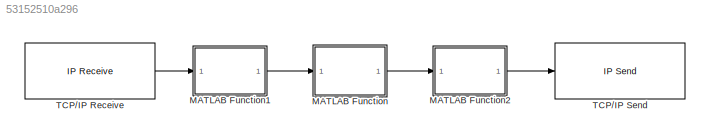
MODEL slx_53152510a296
KIND model
CONFIG AbsTol = auto
CONFIG EnableMultiTasking = off
CONFIG FixedStep = auto
CONFIG MaxStep = auto
CONFIG MinStep = auto
CONFIG RelTol = 1e-3
CONFIG SampleTimeConstraint = Unconstrained
CONFIG SolverName = VariableStepAuto
CONFIG StartTime = 0.0
CONFIG StopTime = 10.0
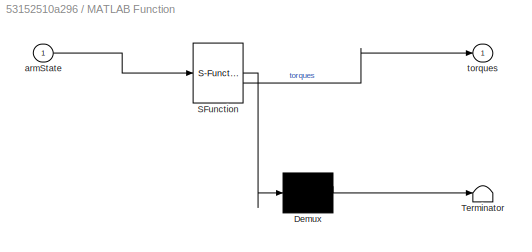
BLOCK [SubSystem] MATLAB Function
  ErrorFcn = Stateflow.Translate.translate
  LibrarySourceBlock = simulink/User-Defined\nFunctions/MATLAB Function
  PermitHierarchicalResolution = ExplicitOnly
  SFBlockType = MATLAB Function
  TreatAsAtomicUnit = on
BLOCK [Demux] MATLAB Function/ Demux 
  Outputs = 1
BLOCK [S-Function] MATLAB Function/ SFunction 
  EnableBusSupport = on
  FunctionName = sf_sfun
  PortCounts = [1 2]
  SFcnIsStateOwnerBlock = off
  SFunctionDeploymentMode = off
  Tag = Stateflow S-Function 2
BLOCK [Terminator] MATLAB Function/ Terminator 
BLOCK [Inport] MATLAB Function/armState
BLOCK [Outport] MATLAB Function/torques
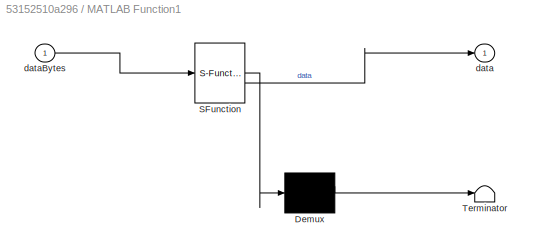
BLOCK [SubSystem] MATLAB Function1
  ErrorFcn = Stateflow.Translate.translate
  PermitHierarchicalResolution = ExplicitOnly
  SFBlockType = MATLAB Function
  TreatAsAtomicUnit = on
BLOCK [Demux] MATLAB Function1/ Demux 
  Outputs = 1
BLOCK [S-Function] MATLAB Function1/ SFunction 
  EnableBusSupport = on
  FunctionName = sf_sfun
  PortCounts = [1 2]
  SFcnIsStateOwnerBlock = off
  SFunctionDeploymentMode = off
  Tag = Stateflow S-Function 1
BLOCK [Terminator] MATLAB Function1/ Terminator 
BLOCK [Outport] MATLAB Function1/data
BLOCK [Inport] MATLAB Function1/dataBytes
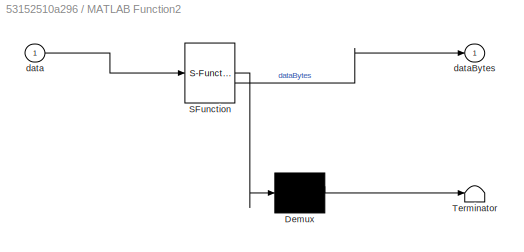
BLOCK [SubSystem] MATLAB Function2
  ErrorFcn = Stateflow.Translate.translate
  PermitHierarchicalResolution = ExplicitOnly
  SFBlockType = MATLAB Function
  TreatAsAtomicUnit = on
BLOCK [Demux] MATLAB Function2/ Demux 
  Outputs = 1
BLOCK [S-Function] MATLAB Function2/ SFunction 
  EnableBusSupport = on
  FunctionName = sf_sfun
  PortCounts = [1 2]
  SFcnIsStateOwnerBlock = off
  SFunctionDeploymentMode = off
  Tag = Stateflow S-Function 3
BLOCK [Terminator] MATLAB Function2/ Terminator 
BLOCK [Inport] MATLAB Function2/data
BLOCK [Outport] MATLAB Function2/dataBytes
BLOCK [Reference] TCP//IP Receive  REF=instrumentlib/TCP//IP Receive
  SourceBlock = instrumentlib/TCP//IP Receive
  SourceType = instrument.system.TCPIPReceive
BLOCK [Reference] TCP//IP Send  REF=instrumentlib/TCP//IP Send
  SourceBlock = instrumentlib/TCP//IP Send
  SourceType = instrument.system.TCPIPSend
LINE MATLAB Function1:1 -> MATLAB Function:1
LINE MATLAB Function2:1 -> TCP//IP Send:1
LINE MATLAB Function:1 -> MATLAB Function2:1
LINE TCP//IP Receive:1 -> MATLAB Function1:1
CHART MATLAB Function states=1 transitions=1
  STATE_LABEL 'eML_blk_kernel()'
  STATE_LABEL 'SCRIPT:\nfunction torques = computeTorques(armState)\n    torques = [0, 0, 0, 0, 1, 0, 1];\nend\n'
CHART MATLAB Function2 states=1 transitions=1
  STATE_LABEL 'eML_blk_kernel()'
  STATE_LABEL "SCRIPT:\nfunction dataBytes = serialize(data)\n    % Check endianness\n    if ~isequal(typecast(swapbytes(uint16(1)), 'uint8'), [1, 0])\n        % The system is little-endian, swap the byte order of the data array\n        dataBytes = typecast(swapbytes(data), 'uint8');\n    else\n        % The system is big-endian, no need to swap bytes\n        dataBytes = typecast(data, 'uint8');\n    end\nend"
CHART MATLAB Function1 states=1 transitions=1
  STATE_LABEL 'eML_blk_kernel()'
  STATE_LABEL "SCRIPT:\nfunction data = deserialize(dataBytes)\n    dataUint64 = typecast(dataBytes, 'uint64');\n\n    % Check endianness\n    if ~isequal(typecast(swapbytes(uint16(1)), 'uint8'), [1, 0])\n        % The system is little-endian, swap the byte order\n        dataUint64 = swapbytes(dataUint64);\n    end\n\n    % Convert the uint64 data back to doubles\n    data = typecast(dataUint64, 'double');\nend\n"
CHART  states=0 transitions=0
CHART  states=0 transitions=0
CHART  states=0 transitions=0
